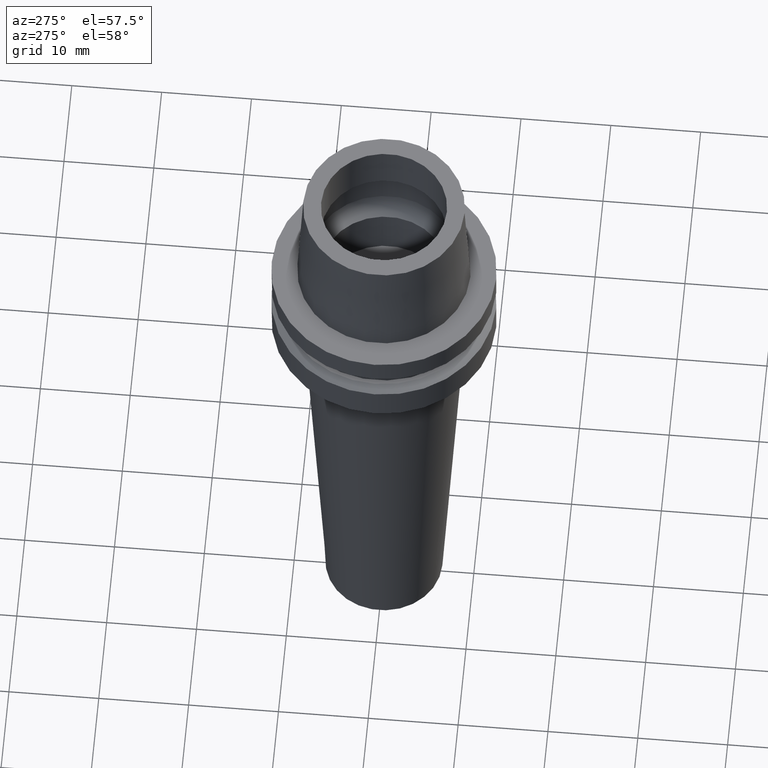
[diagram: clean part render]
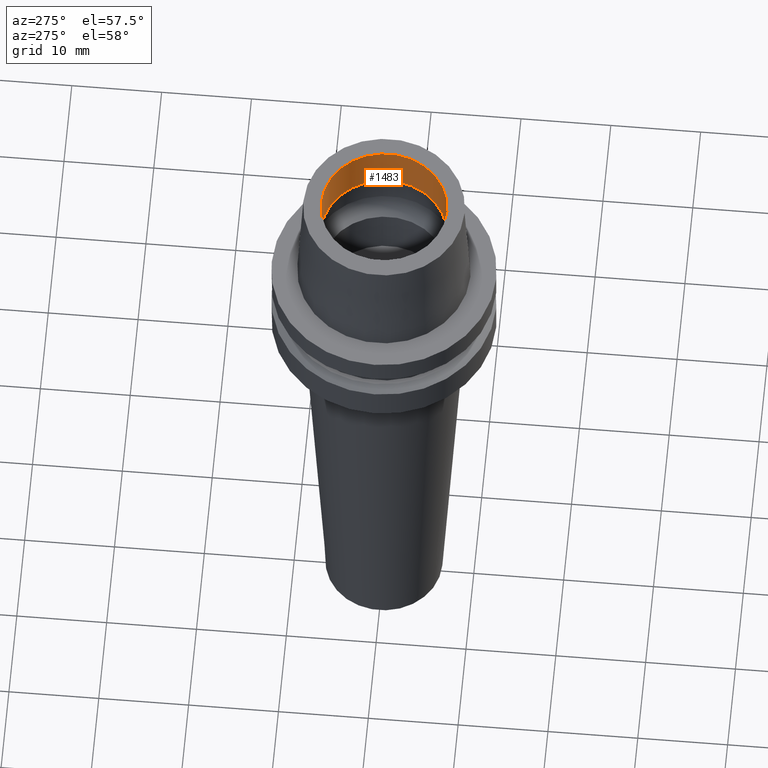
[diagram: same view with one face highlighted and labeled with its STEP entity id]
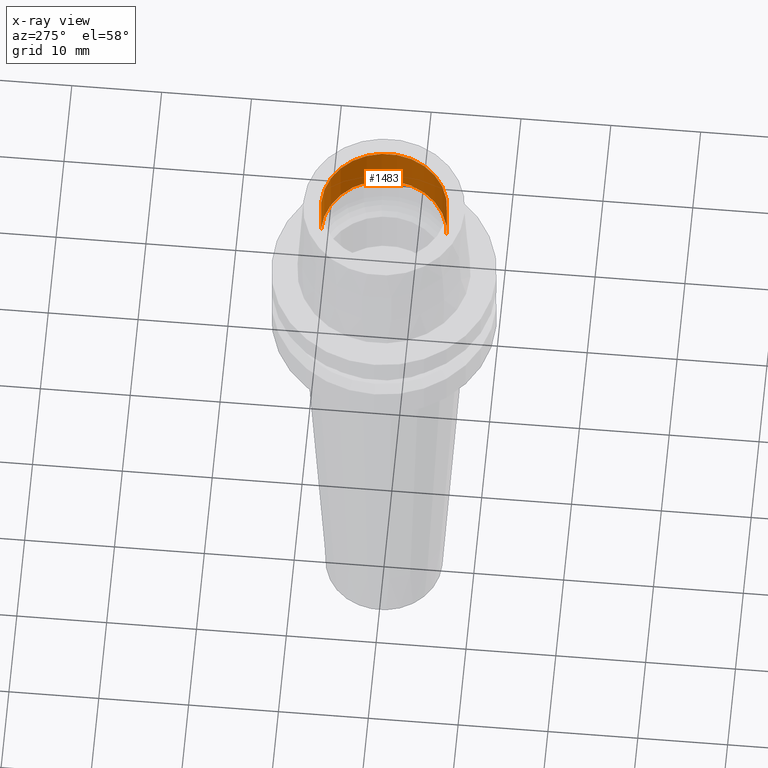
[diagram: x-ray of the same camera — body ghosted, the highlighted face saturated]
A machine part, auxiliary view. The second image highlights one B-rep face of the part: STEP entity #1483.
The next image is the same camera in x-ray: the body ghosted, the highlighted face saturated — about 0% of this face is hidden behind the body in this view.
In plain terms, the highlighted cylindrical surface (partial cylindrical patch) has radius 7 mm, axis along (0, 0, -1).
Its self-contained STEP definition (entity closure, byte-faithful):
#34=CARTESIAN_POINT('',(0.E0,1.428550491205E-14,1.3E1));
#35=DIRECTION('',(0.E0,0.E0,1.E0));
#36=DIRECTION('',(0.E0,-1.E0,0.E0));
#37=AXIS2_PLACEMENT_3D('',#34,#35,#36);
#690=CARTESIAN_POINT('',(0.E0,1.312236783207E-14,7.498675134595E0));
#691=DIRECTION('',(0.E0,0.E0,-1.E0));
#692=DIRECTION('',(0.E0,1.E0,0.E0));
#693=AXIS2_PLACEMENT_3D('',#690,#691,#692);
#706=DIRECTION('',(0.E0,0.E0,1.E0));
#707=VECTOR('',#706,5.501324865405E0);
#708=CARTESIAN_POINT('',(0.E0,7.E0,7.498675134595E0));
#709=LINE('',#708,#707);
#713=DIRECTION('',(0.E0,0.E0,1.E0));
#714=VECTOR('',#713,5.501324865405E0);
#715=CARTESIAN_POINT('',(0.E0,-7.E0,7.498675134595E0));
#716=LINE('',#715,#714);
#724=CARTESIAN_POINT('',(0.E0,-7.E0,1.3E1));
#725=CARTESIAN_POINT('',(0.E0,7.E0,1.3E1));
#726=VERTEX_POINT('',#724);
#727=VERTEX_POINT('',#725);
#728=CARTESIAN_POINT('',(0.E0,7.E0,7.498675134595E0));
#729=VERTEX_POINT('',#728);
#730=CARTESIAN_POINT('',(0.E0,-7.E0,7.498675134595E0));
#731=VERTEX_POINT('',#730);
#1470=CARTESIAN_POINT('',(0.E0,1.428550491205E-14,1.665E1));
#1471=DIRECTION('',(0.E0,0.E0,-1.E0));
#1472=DIRECTION('',(0.E0,-1.E0,0.E0));
#1473=AXIS2_PLACEMENT_3D('',#1470,#1471,#1472);
#1474=CYLINDRICAL_SURFACE('',#1473,7.E0);
#1476=ORIENTED_EDGE('',*,*,#1475,.T.);
#1477=ORIENTED_EDGE('',*,*,#843,.F.);
#1479=ORIENTED_EDGE('',*,*,#1478,.F.);
#1480=ORIENTED_EDGE('',*,*,#1463,.F.);
#1481=EDGE_LOOP('',(#1476,#1477,#1479,#1480));
#1482=FACE_OUTER_BOUND('',#1481,.F.);
#38=CIRCLE('',#37,7.E0);
#694=CIRCLE('',#693,7.E0);
#843=EDGE_CURVE('',#726,#727,#38,.T.);
#1463=EDGE_CURVE('',#729,#731,#694,.T.);
#1475=EDGE_CURVE('',#729,#727,#709,.T.);
#1478=EDGE_CURVE('',#731,#726,#716,.T.);
#1483=ADVANCED_FACE('',(#1482),#1474,.F.);